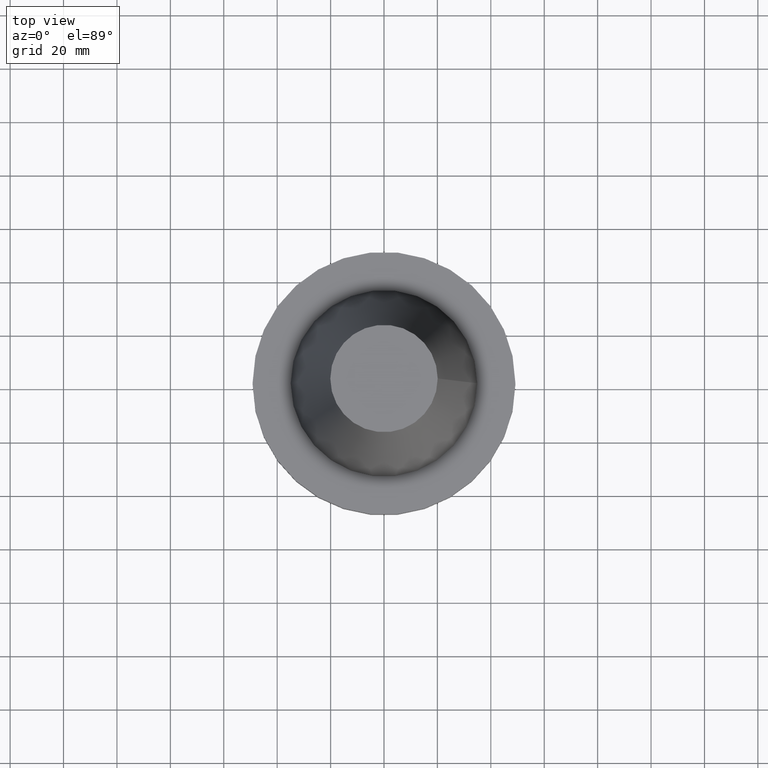
[diagram: clean part render]
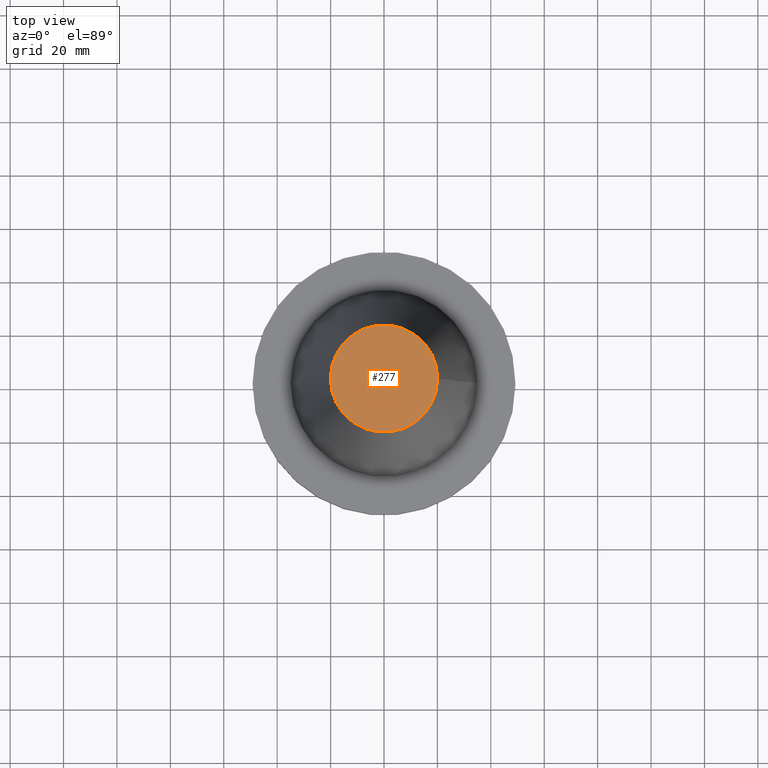
[diagram: same view with one face highlighted and labeled with its STEP entity id]
A machine part, top view. The second image highlights one B-rep face of the part: STEP entity #277.
In plain terms, the highlighted planar face has unit normal (0, 0, -1).
Its self-contained STEP definition (entity closure, byte-faithful):
#30 = CIRCLE ( 'NONE', #55, 20.10819343178871321 ) ;
#55 = AXIS2_PLACEMENT_3D ( 'NONE', #265, #343, #383 ) ;
#80 = AXIS2_PLACEMENT_3D ( 'NONE', #392, #120, #212 ) ;
#98 = EDGE_LOOP ( 'NONE', ( #305 ) ) ;
#120 = DIRECTION ( 'NONE',  ( 0.000000000000000000, 0.000000000000000000, -1.000000000000000000 ) ) ;
#150 = FACE_OUTER_BOUND ( 'NONE', #98, .T. ) ;
#212 = DIRECTION ( 'NONE',  ( -1.000000000000000000, 0.000000000000000000, -0.000000000000000000 ) ) ;
#265 = CARTESIAN_POINT ( 'NONE',  ( 0.000000000000000000, 0.000000000000000000, 101.5999999999999801 ) ) ;
#277 = ADVANCED_FACE ( 'NONE', ( #150 ), #335, .F. ) ;
#278 = CARTESIAN_POINT ( 'NONE',  ( 20.10819343178871321, 0.000000000000000000, 101.5999999999999801 ) ) ;
#305 = ORIENTED_EDGE ( 'NONE', *, *, #394, .T. ) ;
#335 = PLANE ( 'NONE',  #80 ) ;
#343 = DIRECTION ( 'NONE',  ( -0.000000000000000000, -0.000000000000000000, 1.000000000000000000 ) ) ;
#363 = VERTEX_POINT ( 'NONE', #278 ) ;
#383 = DIRECTION ( 'NONE',  ( 1.000000000000000000, 0.000000000000000000, 0.000000000000000000 ) ) ;
#392 = CARTESIAN_POINT ( 'NONE',  ( 0.000000000000000000, 20.10819343178871321, 101.5999999999999943 ) ) ;
#394 = EDGE_CURVE ( 'NONE', #363, #363, #30, .T. ) ;